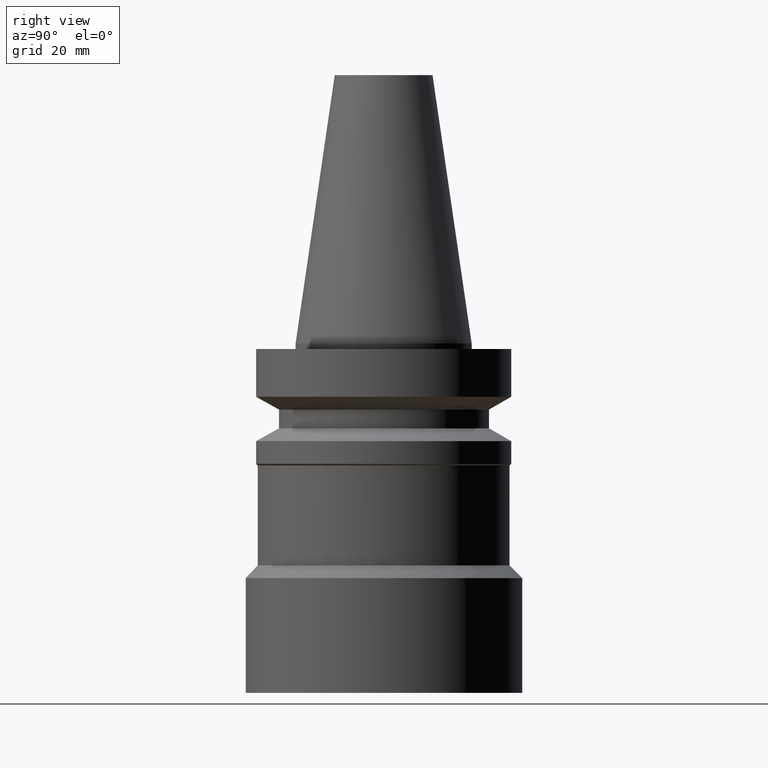
[diagram: clean part render]
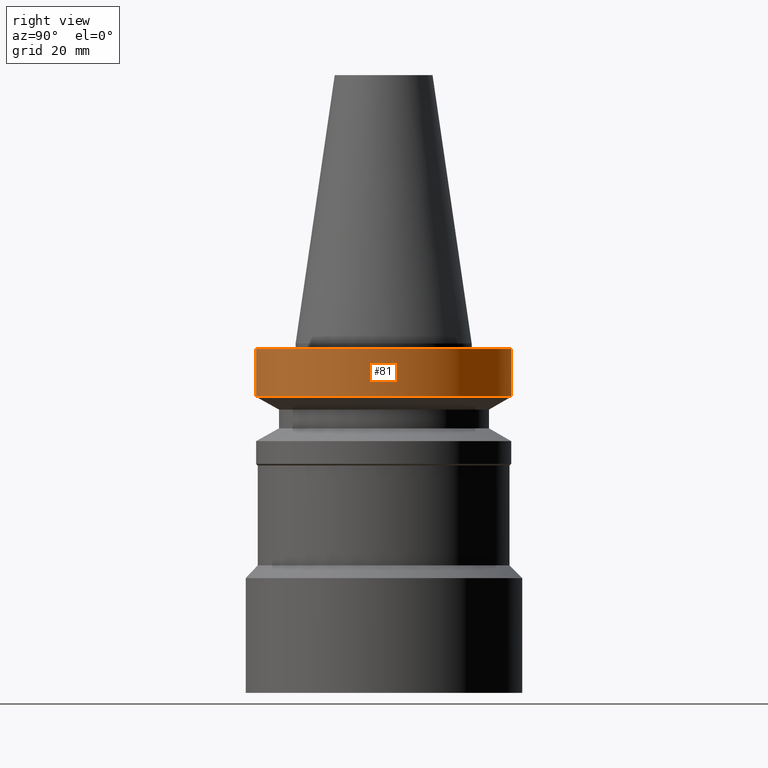
[diagram: same view with one face highlighted and labeled with its STEP entity id]
A machine part, right view. The second image highlights one B-rep face of the part: STEP entity #81.
In plain terms, the highlighted cylindrical surface (bore or boss wall) has radius 23 mm, axis along (-0, -0, 1).
Its self-contained STEP definition (entity closure, byte-faithful):
#81=ADVANCED_FACE('',(#107,#108),#109,.T.);
#107=FACE_BOUND('',#147,.T.);
#108=FACE_BOUND('',#148,.T.);
#109=CYLINDRICAL_SURFACE('',#149,23.0);
#147=EDGE_LOOP('',(#199));
#148=EDGE_LOOP('',(#200));
#149=AXIS2_PLACEMENT_3D('',#201,#202,#203);
#199=ORIENTED_EDGE('',*,*,#245,.F.);
#200=ORIENTED_EDGE('',*,*,#244,.T.);
#201=CARTESIAN_POINT('',(3.24531401774048E-016,6.49062803548097E-016,-5.3));
#202=DIRECTION('',(-6.12323399573677E-017,-1.22464679914735E-016,1.0));
#203=DIRECTION('',(-1.23259516440783E-032,1.0,1.22464679914735E-016));
#244=EDGE_CURVE('',#263,#263,#264,.T.);
#245=EDGE_CURVE('',#265,#265,#266,.T.);
#263=VERTEX_POINT('',#289);
#264=CIRCLE('',#290,23.0);
#265=VERTEX_POINT('',#291);
#266=CIRCLE('',#292,23.0);
#289=CARTESIAN_POINT('',(6.12323399573674E-017,23.0,-0.999999999999997));
#290=AXIS2_PLACEMENT_3D('',#321,#322,#323);
#291=CARTESIAN_POINT('',(5.87830463590729E-016,23.0,-9.6));
#292=AXIS2_PLACEMENT_3D('',#324,#325,#326);
#321=CARTESIAN_POINT('',(6.12323399573677E-017,1.22464679914735E-016,-1.0));
#322=DIRECTION('',(6.12323399573677E-017,1.22464679914735E-016,-1.0));
#323=DIRECTION('',(-1.23259516440783E-032,1.0,1.22464679914735E-016));
#324=CARTESIAN_POINT('',(5.8783046359073E-016,1.17566092718146E-015,-9.6));
#325=DIRECTION('',(6.12323399573677E-017,1.22464679914735E-016,-1.0));
#326=DIRECTION('',(-1.23259516440783E-032,1.0,1.22464679914735E-016));